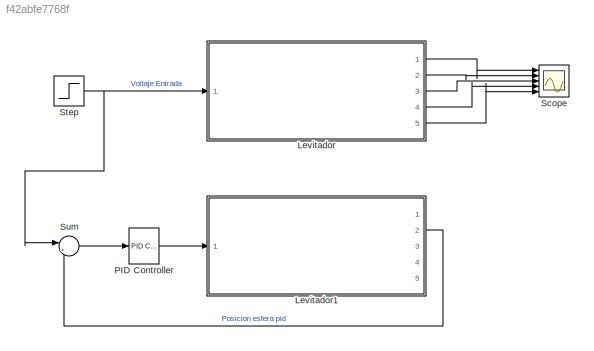
MODEL slx_f42abfe7768f
KIND model
CONFIG AbsTol = auto
CONFIG EnableMultiTasking = off
CONFIG FixedStep = auto
CONFIG MaxStep = auto
CONFIG MinStep = auto
CONFIG RelTol = 1e-3
CONFIG SampleTimeConstraint = Unconstrained
CONFIG SolverName = VariableStepAuto
CONFIG StartTime = 0.0
CONFIG StopTime = 30
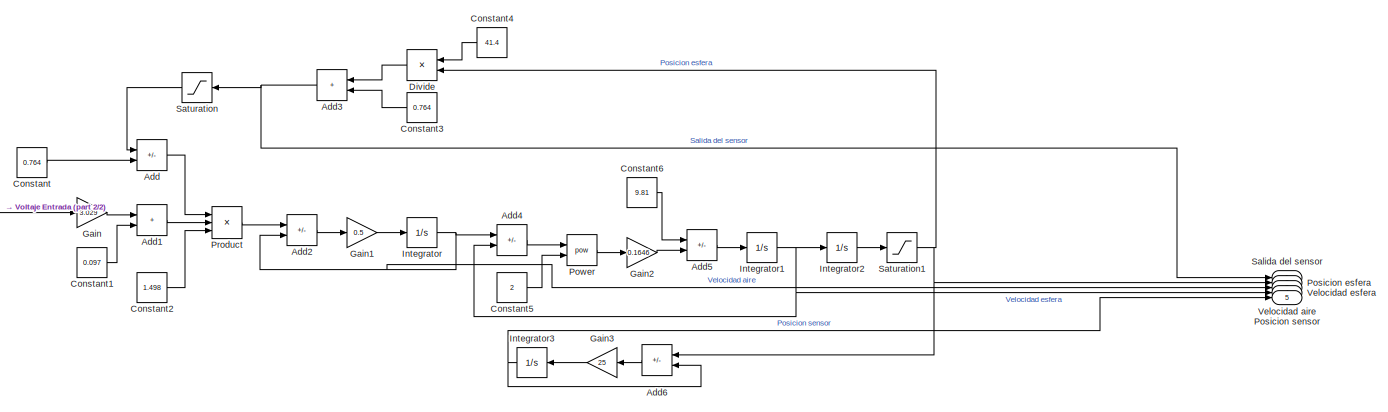
[diagram: Levitador - part 1/2, most of the canvas]
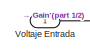
[diagram: Levitador - part 2/2, middle left region]
BLOCK [SubSystem] Levitador
  Ports = [1, 5]
  RequestExecContextInheritance = off
BLOCK [Sum] Levitador/Add
  IconShape = rectangular
  Inputs = +-
  Ports = [2, 1]
BLOCK [Sum] Levitador/Add1
  IconShape = rectangular
  Ports = [2, 1]
BLOCK [Sum] Levitador/Add2
  IconShape = rectangular
  Inputs = +-
  Ports = [2, 1]
BLOCK [Sum] Levitador/Add3
  IconShape = rectangular
  Ports = [2, 1]
BLOCK [Sum] Levitador/Add4
  IconShape = rectangular
  Inputs = +-
  Ports = [2, 1]
BLOCK [Sum] Levitador/Add5
  IconShape = rectangular
  Inputs = -+
  Ports = [2, 1]
BLOCK [Sum] Levitador/Add6
  IconShape = rectangular
  Inputs = +-
  Ports = [2, 1]
BLOCK [Constant] Levitador/Constant
  Value = 0.764
BLOCK [Constant] Levitador/Constant1
  Value = 0.097
BLOCK [Constant] Levitador/Constant2
  Value = 1.498
BLOCK [Constant] Levitador/Constant3
  Value = 0.764
BLOCK [Constant] Levitador/Constant4
  Value = 41.4
BLOCK [Constant] Levitador/Constant5
  Value = 2
BLOCK [Constant] Levitador/Constant6
  Value = 9.81
BLOCK [Product] Levitador/Divide
  Inputs = */
  Ports = [2, 1]
BLOCK [Gain] Levitador/Gain
  Gain = 3.029
BLOCK [Gain] Levitador/Gain1
  Gain = 0.5
BLOCK [Gain] Levitador/Gain2
  Gain = 0.1646
BLOCK [Gain] Levitador/Gain3
  Gain = 25
BLOCK [Integrator] Levitador/Integrator
  Ports = [1, 1]
BLOCK [Integrator] Levitador/Integrator1
  Ports = [1, 1]
BLOCK [Integrator] Levitador/Integrator2
  InitialCondition = 0.5
  Ports = [1, 1]
BLOCK [Integrator] Levitador/Integrator3
  Ports = [1, 1]
BLOCK [Outport] Levitador/Posicion esfera
  Port = 2
BLOCK [Outport] Levitador/Posicion sensor
  Port = 5
BLOCK [Math] Levitador/Power
  Operator = pow
  Ports = [2, 1]
BLOCK [Product] Levitador/Product
  Inputs = 3
  Ports = [3, 1]
BLOCK [Outport] Levitador/Salida del sensor
BLOCK [Saturate] Levitador/Saturation
  LowerLimit = 0.8
  UpperLimit = 2.6
BLOCK [Saturate] Levitador/Saturation1
  LowerLimit = 0
  UpperLimit = 100
BLOCK [Outport] Levitador/Velocidad aire
  Port = 3
BLOCK [Outport] Levitador/Velocidad esfera
  Port = 4
BLOCK [Inport] Levitador/Voltaje Entrada
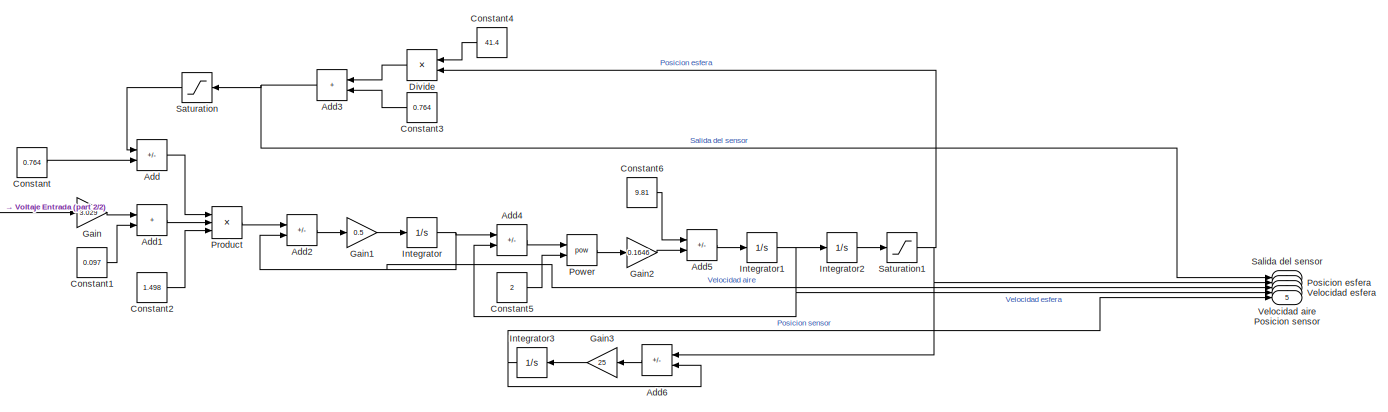
[diagram: Levitador1 - part 1/2, most of the canvas]
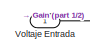
[diagram: Levitador1 - part 2/2, middle left region]
BLOCK [SubSystem] Levitador1
  Ports = [1, 5]
  RequestExecContextInheritance = off
BLOCK [Sum] Levitador1/Add
  IconShape = rectangular
  Inputs = +-
  Ports = [2, 1]
BLOCK [Sum] Levitador1/Add1
  IconShape = rectangular
  Ports = [2, 1]
BLOCK [Sum] Levitador1/Add2
  IconShape = rectangular
  Inputs = +-
  Ports = [2, 1]
BLOCK [Sum] Levitador1/Add3
  IconShape = rectangular
  Ports = [2, 1]
BLOCK [Sum] Levitador1/Add4
  IconShape = rectangular
  Inputs = +-
  Ports = [2, 1]
BLOCK [Sum] Levitador1/Add5
  IconShape = rectangular
  Inputs = -+
  Ports = [2, 1]
BLOCK [Sum] Levitador1/Add6
  IconShape = rectangular
  Inputs = +-
  Ports = [2, 1]
BLOCK [Constant] Levitador1/Constant
  Value = 0.764
BLOCK [Constant] Levitador1/Constant1
  Value = 0.097
BLOCK [Constant] Levitador1/Constant2
  Value = 1.498
BLOCK [Constant] Levitador1/Constant3
  Value = 0.764
BLOCK [Constant] Levitador1/Constant4
  Value = 41.4
BLOCK [Constant] Levitador1/Constant5
  Value = 2
BLOCK [Constant] Levitador1/Constant6
  Value = 9.81
BLOCK [Product] Levitador1/Divide
  Inputs = */
  Ports = [2, 1]
BLOCK [Gain] Levitador1/Gain
  Gain = 3.029
BLOCK [Gain] Levitador1/Gain1
  Gain = 0.5
BLOCK [Gain] Levitador1/Gain2
  Gain = 0.1646
BLOCK [Gain] Levitador1/Gain3
  Gain = 25
BLOCK [Integrator] Levitador1/Integrator
  Ports = [1, 1]
BLOCK [Integrator] Levitador1/Integrator1
  Ports = [1, 1]
BLOCK [Integrator] Levitador1/Integrator2
  InitialCondition = 0.5
  Ports = [1, 1]
BLOCK [Integrator] Levitador1/Integrator3
  Ports = [1, 1]
BLOCK [Outport] Levitador1/Posicion esfera
  Port = 2
BLOCK [Outport] Levitador1/Posicion sensor
  Port = 5
BLOCK [Math] Levitador1/Power
  Operator = pow
  Ports = [2, 1]
BLOCK [Product] Levitador1/Product
  Inputs = 3
  Ports = [3, 1]
BLOCK [Outport] Levitador1/Salida del sensor
BLOCK [Saturate] Levitador1/Saturation
  LowerLimit = 0.8
  UpperLimit = 2.6
BLOCK [Saturate] Levitador1/Saturation1
  LowerLimit = 0
  UpperLimit = 100
BLOCK [Outport] Levitador1/Velocidad aire
  Port = 3
BLOCK [Outport] Levitador1/Velocidad esfera
  Port = 4
BLOCK [Inport] Levitador1/Voltaje Entrada
BLOCK [Reference] PID Controller  REF=pid_lib/PID Controller
  Ports = [1, 1]
  SourceBlock = pid_lib/PID Controller
  SourceProductBaseCode = SL
  SourceType = PID 1dof
BLOCK [Scope] Scope
  Floating = off
  NumInputPorts = 5
  Ports = [5]
  ScopeSpecificationString = Simulink.scopes.TimeScopeBlockCfg('CurrentConfiguration', extmgr.ConfigurationSet(extmgr.Configuration('Core','General UI',true),extmgr.Configuration('Core','Source UI',true),extmgr.Configuration('Sources','WiredSimulink',true),extmgr.Configuration('Visuals','Time Domain',true,'SerializedDisplays',{struct('MinYLimReal','-28327107957030.14453','MaxYLimReal','254943971613226.375','YLabelReal','','Mi...<+1586ch>
BLOCK [Step] Step
  After = 5
  SampleTime = 0
  Time = 0
BLOCK [Sum] Sum
  Inputs = |+-
  Ports = [2, 1]
LINE Levitador/Add1:1 -> Levitador/Product:2
LINE Levitador/Add2:1 -> Levitador/Gain1:1
NET Levitador/Add3:1 -> Levitador/Salida del sensor:1, Levitador/Saturation:1
LINE Levitador/Add4:1 -> Levitador/Power:1
LINE Levitador/Add5:1 -> Levitador/Integrator1:1
LINE Levitador/Add6:1 -> Levitador/Gain3:1
LINE Levitador/Add:1 -> Levitador/Product:1
LINE Levitador/Constant1:1 -> Levitador/Add1:2
LINE Levitador/Constant2:1 -> Levitador/Product:3
LINE Levitador/Constant3:1 -> Levitador/Add3:2
LINE Levitador/Constant4:1 -> Levitador/Divide:1
LINE Levitador/Constant5:1 -> Levitador/Power:2
LINE Levitador/Constant6:1 -> Levitador/Add5:1
LINE Levitador/Constant:1 -> Levitador/Add:2
LINE Levitador/Divide:1 -> Levitador/Add3:1
LINE Levitador/Gain1:1 -> Levitador/Integrator:1
LINE Levitador/Gain2:1 -> Levitador/Add5:2
LINE Levitador/Gain3:1 -> Levitador/Integrator3:1
LINE Levitador/Gain:1 -> Levitador/Add1:1
NET Levitador/Integrator1:1 -> Levitador/Add4:2, Levitador/Integrator2:1, Levitador/Velocidad esfera:1
LINE Levitador/Integrator2:1 -> Levitador/Saturation1:1
NET Levitador/Integrator3:1 -> Levitador/Add6:2, Levitador/Posicion sensor:1
NET Levitador/Integrator:1 -> Levitador/Add2:2, Levitador/Add4:1, Levitador/Velocidad aire:1
LINE Levitador/Power:1 -> Levitador/Gain2:1
LINE Levitador/Product:1 -> Levitador/Add2:1
NET Levitador/Saturation1:1 -> Levitador/Add6:1, Levitador/Divide:2, Levitador/Posicion esfera:1
LINE Levitador/Saturation:1 -> Levitador/Add:1
LINE Levitador/Voltaje Entrada:1 -> Levitador/Gain:1
LINE Levitador1/Add1:1 -> Levitador1/Product:2
LINE Levitador1/Add2:1 -> Levitador1/Gain1:1
NET Levitador1/Add3:1 -> Levitador1/Salida del sensor:1, Levitador1/Saturation:1
LINE Levitador1/Add4:1 -> Levitador1/Power:1
LINE Levitador1/Add5:1 -> Levitador1/Integrator1:1
LINE Levitador1/Add6:1 -> Levitador1/Gain3:1
LINE Levitador1/Add:1 -> Levitador1/Product:1
LINE Levitador1/Constant1:1 -> Levitador1/Add1:2
LINE Levitador1/Constant2:1 -> Levitador1/Product:3
LINE Levitador1/Constant3:1 -> Levitador1/Add3:2
LINE Levitador1/Constant4:1 -> Levitador1/Divide:1
LINE Levitador1/Constant5:1 -> Levitador1/Power:2
LINE Levitador1/Constant6:1 -> Levitador1/Add5:1
LINE Levitador1/Constant:1 -> Levitador1/Add:2
LINE Levitador1/Divide:1 -> Levitador1/Add3:1
LINE Levitador1/Gain1:1 -> Levitador1/Integrator:1
LINE Levitador1/Gain2:1 -> Levitador1/Add5:2
LINE Levitador1/Gain3:1 -> Levitador1/Integrator3:1
LINE Levitador1/Gain:1 -> Levitador1/Add1:1
NET Levitador1/Integrator1:1 -> Levitador1/Add4:2, Levitador1/Integrator2:1, Levitador1/Velocidad esfera:1
LINE Levitador1/Integrator2:1 -> Levitador1/Saturation1:1
NET Levitador1/Integrator3:1 -> Levitador1/Add6:2, Levitador1/Posicion sensor:1
NET Levitador1/Integrator:1 -> Levitador1/Add2:2, Levitador1/Add4:1, Levitador1/Velocidad aire:1
LINE Levitador1/Power:1 -> Levitador1/Gain2:1
LINE Levitador1/Product:1 -> Levitador1/Add2:1
NET Levitador1/Saturation1:1 -> Levitador1/Add6:1, Levitador1/Divide:2, Levitador1/Posicion esfera:1
LINE Levitador1/Saturation:1 -> Levitador1/Add:1
LINE Levitador1/Voltaje Entrada:1 -> Levitador1/Gain:1
LINE Levitador1:2 -> Sum:2
LINE Levitador:1 -> Scope:1
LINE Levitador:2 -> Scope:2
LINE Levitador:3 -> Scope:3
LINE Levitador:4 -> Scope:4
LINE Levitador:5 -> Scope:5
LINE PID Controller:1 -> Levitador1:1
NET Step:1 -> Levitador:1, Sum:1
LINE Sum:1 -> PID Controller:1
note: NET lines group one-source signal fan-out (src -> all destinations, sorted); 1:1 wires keep LINE
